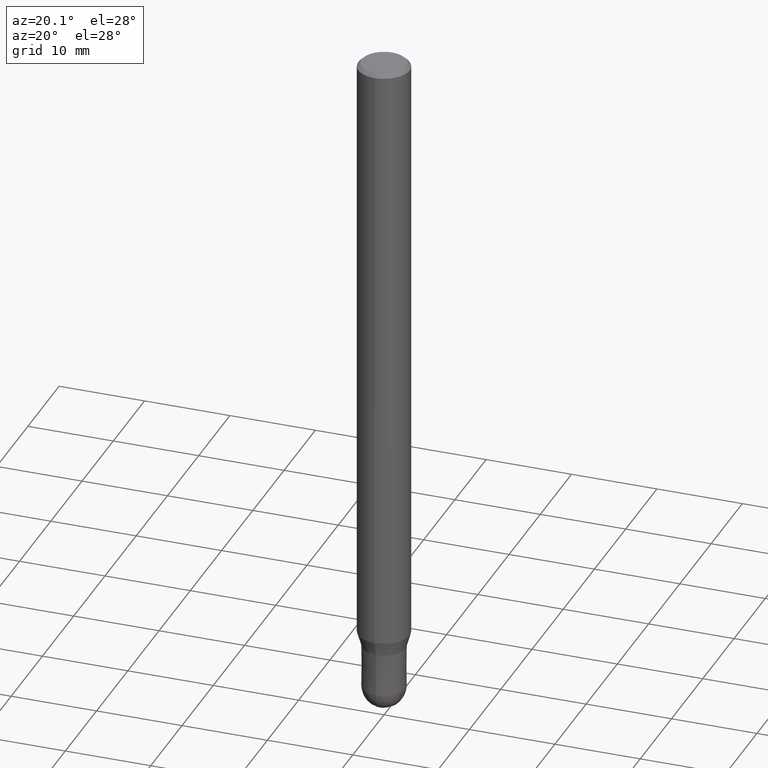
[diagram: clean part render]
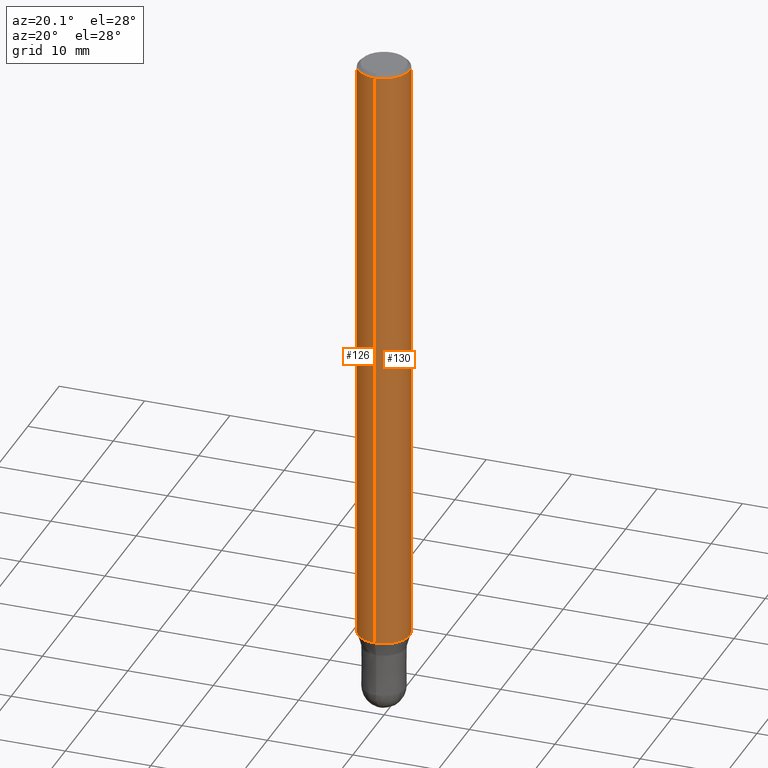
[diagram: same view with one multi-face feature highlighted, each face labeled with its STEP entity id]
A machine part, auxiliary view. The highlighted faces form ONE feature: a constant-radius fillet chain: 2 tangent blend faces with common blend radius 3 mm. The faces share edges in the B-rep.
Their STEP definitions:
[1] entity #126 (Cylinder):
#88=EDGE_CURVE('',#128,#178,#214,.T.);
#90=EDGE_CURVE('',#144,#140,#216,.T.);
#126=ADVANCED_FACE('',(#257),#258,.T.);
#128=VERTEX_POINT('',#260);
#134=EDGE_CURVE('',#178,#140,#267,.T.);
#140=VERTEX_POINT('',#273);
#144=VERTEX_POINT('',#279);
#150=EDGE_CURVE('',#144,#128,#285,.T.);
#178=VERTEX_POINT('',#317);
#214=CIRCLE('',#347,3.0);
#216=CIRCLE('',#350,3.0);
#257=FACE_OUTER_BOUND('',#401,.T.);
#258=CYLINDRICAL_SURFACE('',#402,3.0);
#260=CARTESIAN_POINT('',(3.67381906146713E-016,-3.0,-0.400000000000006));
#267=LINE('',#413,#414);
#273=CARTESIAN_POINT('',(0.0,3.0,-70.756));
#279=CARTESIAN_POINT('',(3.67381906146713E-016,-3.0,-70.756));
#285=LINE('',#434,#435);
#317=CARTESIAN_POINT('',(0.0,3.0,-0.400000000000006));
#347=AXIS2_PLACEMENT_3D('',#501,#502,#503);
#350=AXIS2_PLACEMENT_3D('',#504,#505,#506);
#401=EDGE_LOOP('',(#562,#563,#564,#565));
#402=AXIS2_PLACEMENT_3D('',#566,#567,#568);
#413=CARTESIAN_POINT('',(-3.67381906146713E-016,3.0,-35.578));
#414=VECTOR('',#580,1.0);
#434=CARTESIAN_POINT('',(3.67381906146713E-016,-3.0,-35.578));
#435=VECTOR('',#596,1.0);
#501=CARTESIAN_POINT('',(0.0,0.0,-0.400000000000006));
#502=DIRECTION('',(0.0,0.0,-1.0));
#503=DIRECTION('',(0.0,1.0,0.0));
#504=CARTESIAN_POINT('',(0.0,0.0,-70.756));
#505=DIRECTION('',(0.0,0.0,-1.0));
#506=DIRECTION('',(0.0,1.0,0.0));
#562=ORIENTED_EDGE('',*,*,#134,.T.);
#563=ORIENTED_EDGE('',*,*,#90,.F.);
#564=ORIENTED_EDGE('',*,*,#150,.T.);
#565=ORIENTED_EDGE('',*,*,#88,.T.);
#566=CARTESIAN_POINT('',(0.0,0.0,-35.578));
#567=DIRECTION('',(-0.0,-0.0,1.0));
#568=DIRECTION('',(0.0,1.0,0.0));
#580=DIRECTION('',(0.0,0.0,-1.0));
#596=DIRECTION('',(-0.0,-0.0,1.0));
[2] entity #130 (Cylinder):
#128=VERTEX_POINT('',#260);
#130=ADVANCED_FACE('',(#262),#263,.T.);
#134=EDGE_CURVE('',#178,#140,#267,.T.);
#138=EDGE_CURVE('',#140,#144,#271,.T.);
#140=VERTEX_POINT('',#273);
#144=VERTEX_POINT('',#279);
#150=EDGE_CURVE('',#144,#128,#285,.T.);
#174=EDGE_CURVE('',#178,#128,#312,.T.);
#178=VERTEX_POINT('',#317);
#260=CARTESIAN_POINT('',(3.67381906146713E-016,-3.0,-0.400000000000006));
#262=FACE_OUTER_BOUND('',#406,.T.);
#263=CYLINDRICAL_SURFACE('',#407,3.0);
#267=LINE('',#413,#414);
#271=CIRCLE('',#419,3.0);
#273=CARTESIAN_POINT('',(0.0,3.0,-70.756));
#279=CARTESIAN_POINT('',(3.67381906146713E-016,-3.0,-70.756));
#285=LINE('',#434,#435);
#312=CIRCLE('',#470,3.0);
#317=CARTESIAN_POINT('',(0.0,3.0,-0.400000000000006));
#406=EDGE_LOOP('',(#570,#571,#572,#573));
#407=AXIS2_PLACEMENT_3D('',#574,#575,#576);
#413=CARTESIAN_POINT('',(-3.67381906146713E-016,3.0,-35.578));
#414=VECTOR('',#580,1.0);
#419=AXIS2_PLACEMENT_3D('',#581,#582,#583);
#434=CARTESIAN_POINT('',(3.67381906146713E-016,-3.0,-35.578));
#435=VECTOR('',#596,1.0);
#470=AXIS2_PLACEMENT_3D('',#627,#628,#629);
#570=ORIENTED_EDGE('',*,*,#134,.F.);
#571=ORIENTED_EDGE('',*,*,#174,.T.);
#572=ORIENTED_EDGE('',*,*,#150,.F.);
#573=ORIENTED_EDGE('',*,*,#138,.F.);
#574=CARTESIAN_POINT('',(0.0,0.0,-35.578));
#575=DIRECTION('',(-0.0,-0.0,1.0));
#576=DIRECTION('',(0.0,1.0,0.0));
#580=DIRECTION('',(0.0,0.0,-1.0));
#581=CARTESIAN_POINT('',(0.0,0.0,-70.756));
#582=DIRECTION('',(0.0,0.0,-1.0));
#583=DIRECTION('',(0.0,1.0,0.0));
#596=DIRECTION('',(-0.0,-0.0,1.0));
#627=CARTESIAN_POINT('',(0.0,0.0,-0.400000000000006));
#628=DIRECTION('',(0.0,0.0,-1.0));
#629=DIRECTION('',(0.0,1.0,0.0));